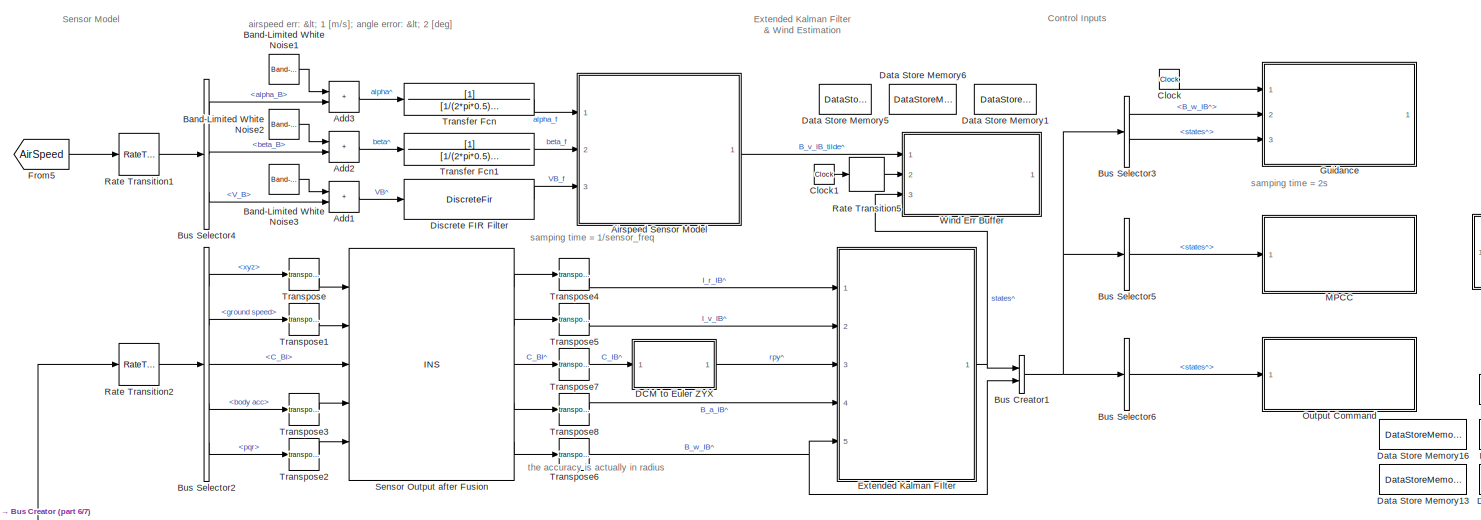
[diagram: root canvas - part 1/7, top center region]
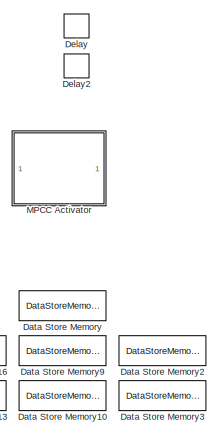
[diagram: root canvas - part 2/7, top right region]
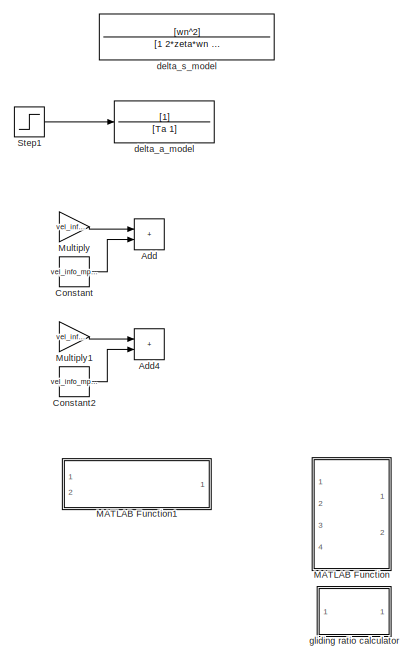
[diagram: root canvas - part 3/7, middle right region]
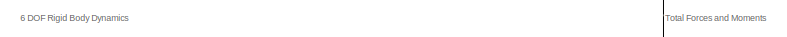
[diagram: root canvas - part 4/7, middle left region]
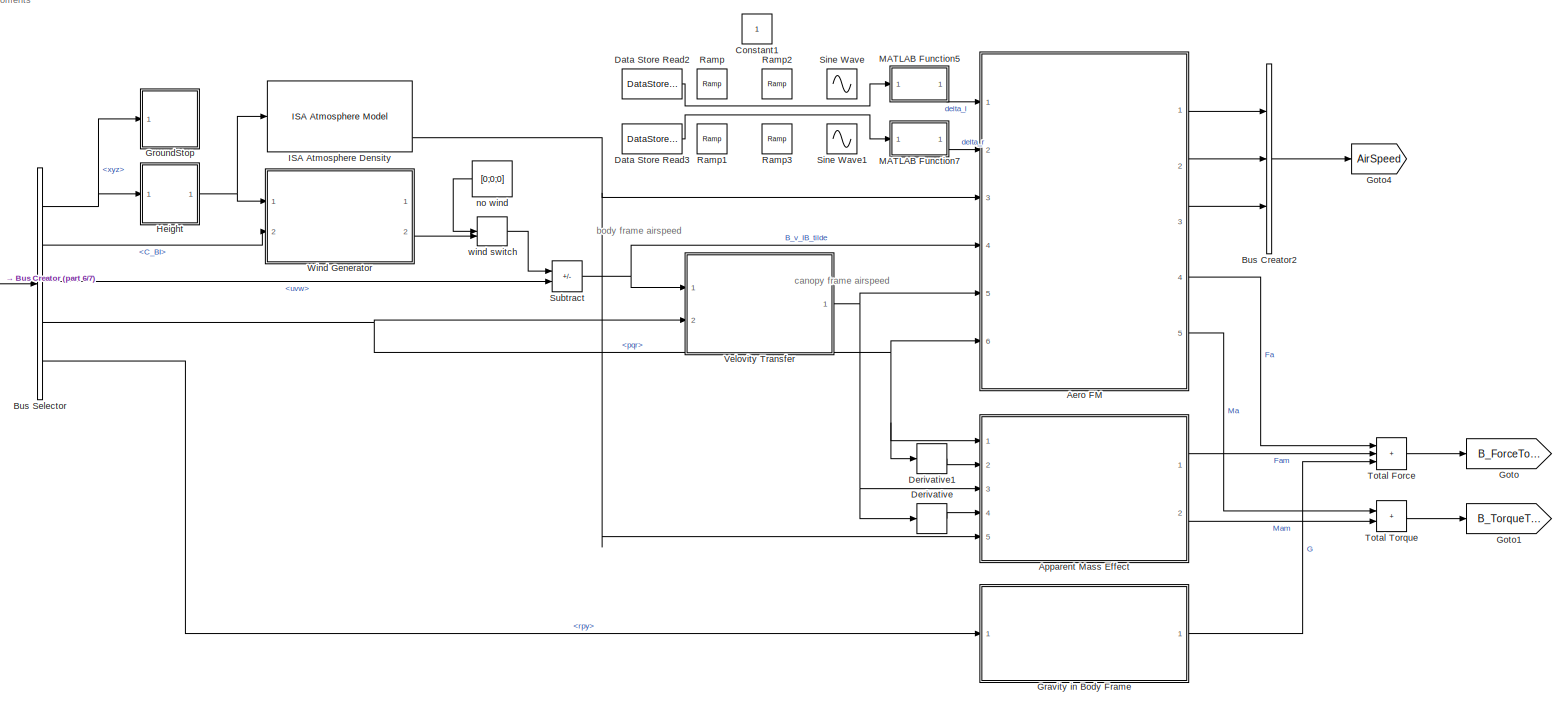
[diagram: root canvas - part 5/7, central region]
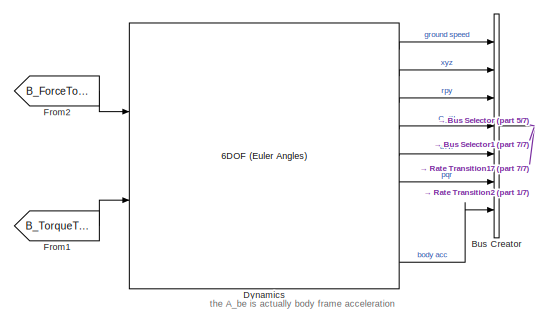
[diagram: root canvas - part 6/7, middle left region]
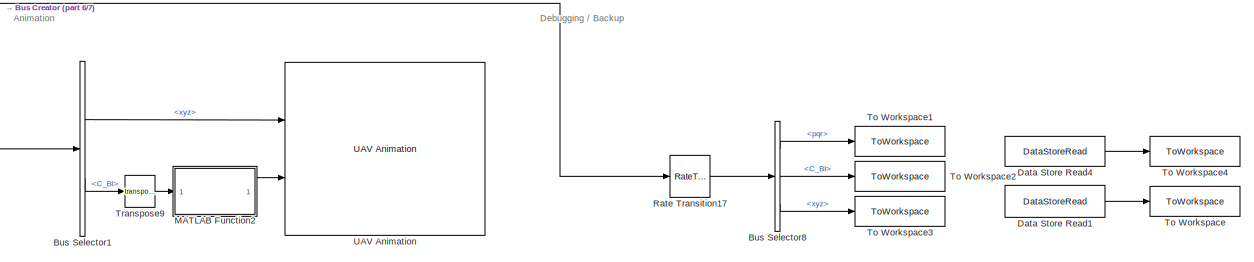
[diagram: root canvas - part 7/7, bottom center region]
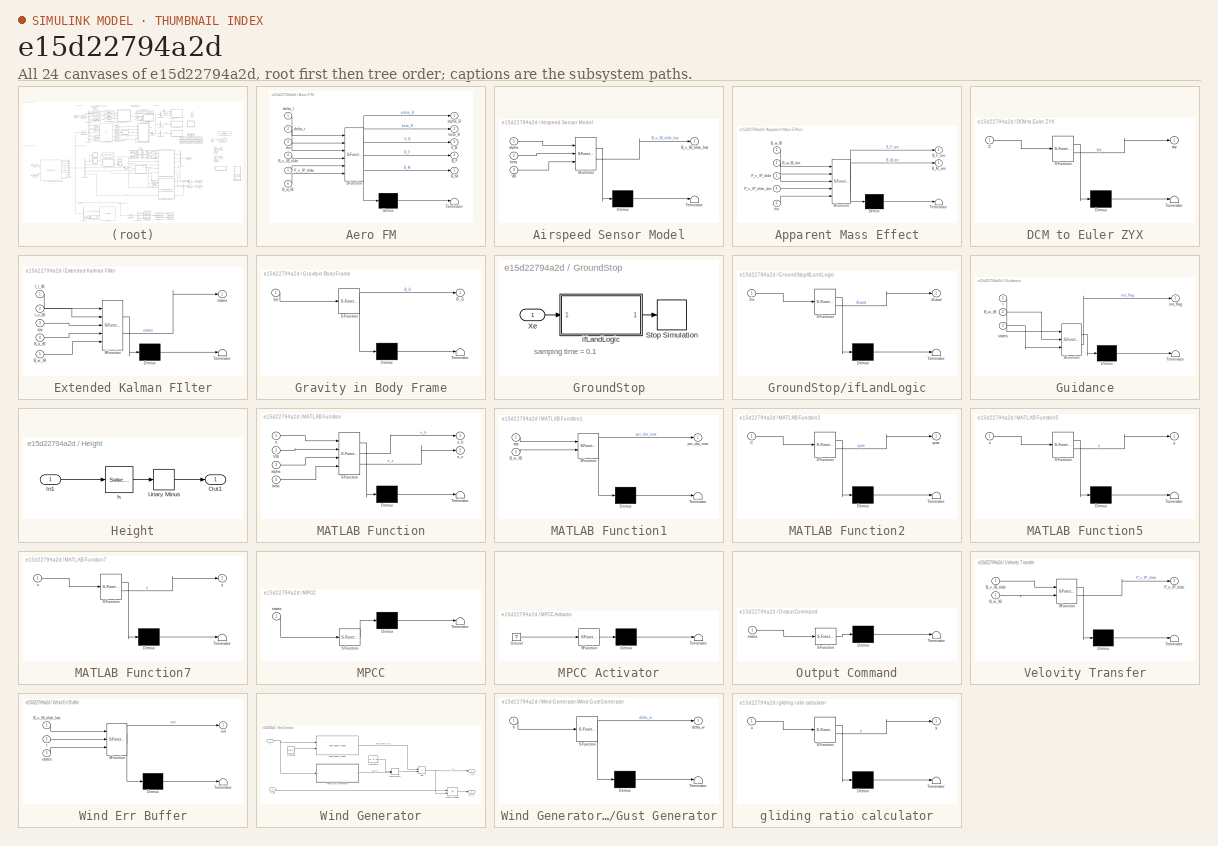
[diagram: thumbnail index - all 24 canvases of the model, root first then tree order]
MODEL slx_e15d22794a2d
KIND model
CONFIG AbsTol = auto
CONFIG EnableMultiTasking = off
CONFIG FixedStep = auto
CONFIG MaxStep = auto
CONFIG MinStep = auto
CONFIG RelTol = 1e-3
CONFIG SampleTimeConstraint = Unconstrained
CONFIG SolverName = ode45
CONFIG StartTime = 0.0
CONFIG StopTime = 150
BLOCK [Sum] Add
  Commented = on
  IconShape = rectangular
  Ports = [2, 1]
BLOCK [Sum] Add1
  IconShape = rectangular
  Ports = [2, 1]
BLOCK [Sum] Add2
  IconShape = rectangular
  Ports = [2, 1]
BLOCK [Sum] Add3
  IconShape = rectangular
  Ports = [2, 1]
BLOCK [Sum] Add4
  Commented = on
  IconShape = rectangular
  Ports = [2, 1]
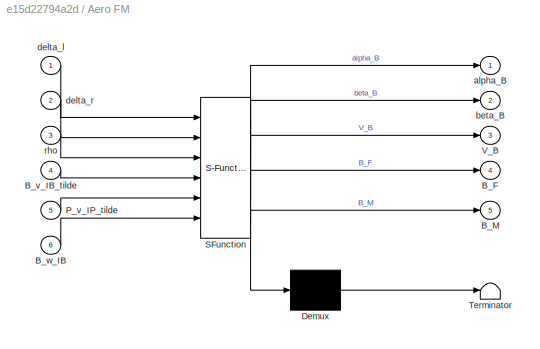
BLOCK [SubSystem] Aero FM
  ErrorFcn = Stateflow.Translate.translate
  PermitHierarchicalResolution = ExplicitOnly
  Ports = [6, 5]
  RequestExecContextInheritance = off
  SFBlockType = MATLAB Function
  TreatAsAtomicUnit = on
BLOCK [Demux] Aero FM/ Demux 
  Outputs = 1
  Ports = [1, 1]
BLOCK [S-Function] Aero FM/ SFunction 
  EnableBusSupport = on
  FunctionName = sf_sfun
  Parameters = B_r_BP,B_r_BW,C_BP,C_BW,S_pd,b,c,cD,cL,cM,cYb,c_Dpd,ref_area
  PortCounts = [6 6]
  Ports = [6, 6]
  SFcnIsStateOwnerBlock = off
  SFunctionDeploymentMode = off
  Tag = Stateflow S-Function 1
BLOCK [Terminator] Aero FM/ Terminator 
BLOCK [Outport] Aero FM/B_F
  Port = 4
BLOCK [Outport] Aero FM/B_M
  Port = 5
BLOCK [Inport] Aero FM/B_v_IB_tilde
  Port = 4
BLOCK [Inport] Aero FM/B_w_IB
  Port = 6
BLOCK [Inport] Aero FM/P_v_IP_tilde
  Port = 5
BLOCK [Outport] Aero FM/V_B
  Port = 3
BLOCK [Outport] Aero FM/alpha_B
BLOCK [Outport] Aero FM/beta_B
  Port = 2
BLOCK [Inport] Aero FM/delta_l
BLOCK [Inport] Aero FM/delta_r
  Port = 2
BLOCK [Inport] Aero FM/rho
  Port = 3
BLOCK [SubSystem] Airspeed Sensor Model
  ErrorFcn = Stateflow.Translate.translate
  PermitHierarchicalResolution = ExplicitOnly
  Ports = [3, 1]
  RequestExecContextInheritance = off
  SFBlockType = MATLAB Function
  SystemSampleTime = 1/sensor_freq
  TreatAsAtomicUnit = on
BLOCK [Demux] Airspeed Sensor Model/ Demux 
  Outputs = 1
  Ports = [1, 1]
BLOCK [S-Function] Airspeed Sensor Model/ SFunction 
  EnableBusSupport = on
  FunctionName = sf_sfun
  PortCounts = [3 2]
  Ports = [3, 2]
  SFcnIsStateOwnerBlock = off
  SFunctionDeploymentMode = off
  Tag = Stateflow S-Function 16
BLOCK [Terminator] Airspeed Sensor Model/ Terminator 
BLOCK [Outport] Airspeed Sensor Model/B_v_IB_tilde_hat
BLOCK [Inport] Airspeed Sensor Model/VB
  Port = 3
BLOCK [Inport] Airspeed Sensor Model/alpha
BLOCK [Inport] Airspeed Sensor Model/beta
  Port = 2
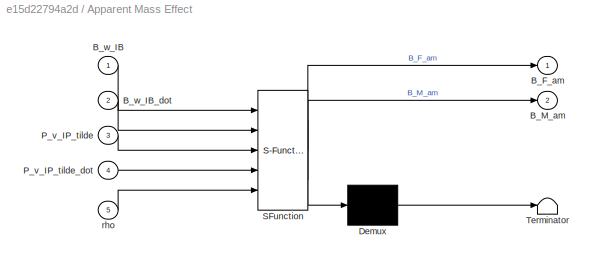
BLOCK [SubSystem] Apparent Mass Effect
  ErrorFcn = Stateflow.Translate.translate
  PermitHierarchicalResolution = ExplicitOnly
  Ports = [5, 2]
  RequestExecContextInheritance = off
  SFBlockType = MATLAB Function
  TreatAsAtomicUnit = on
BLOCK [Demux] Apparent Mass Effect/ Demux 
  Outputs = 1
  Ports = [1, 1]
BLOCK [S-Function] Apparent Mass Effect/ SFunction 
  EnableBusSupport = on
  FunctionName = sf_sfun
  Parameters = B_r_BP,C_BP,Ii,Im
  PortCounts = [5 3]
  Ports = [5, 3]
  SFcnIsStateOwnerBlock = off
  SFunctionDeploymentMode = off
  Tag = Stateflow S-Function 2
BLOCK [Terminator] Apparent Mass Effect/ Terminator 
BLOCK [Outport] Apparent Mass Effect/B_F_am
BLOCK [Outport] Apparent Mass Effect/B_M_am
  Port = 2
BLOCK [Inport] Apparent Mass Effect/B_w_IB
BLOCK [Inport] Apparent Mass Effect/B_w_IB_dot
  Port = 2
BLOCK [Inport] Apparent Mass Effect/P_v_IP_tilde
  Port = 3
BLOCK [Inport] Apparent Mass Effect/P_v_IP_tilde_dot
  Port = 4
BLOCK [Inport] Apparent Mass Effect/rho
  Port = 5
BLOCK [Reference] Band-Limited White Noise1  REF=simulink/Sources/Band-Limited
White Noise
  Ports = [0, 1]
  SourceBlock = simulink/Sources/Band-Limited\nWhite Noise
  SourceProductBaseCode = SL
  SourceType = Band-Limited White Noise.
BLOCK [Reference] Band-Limited White Noise2  REF=simulink/Sources/Band-Limited
White Noise
  Ports = [0, 1]
  SourceBlock = simulink/Sources/Band-Limited\nWhite Noise
  SourceProductBaseCode = SL
  SourceType = Band-Limited White Noise.
BLOCK [Reference] Band-Limited White Noise3  REF=simulink/Sources/Band-Limited
White Noise
  Ports = [0, 1]
  SourceBlock = simulink/Sources/Band-Limited\nWhite Noise
  SourceProductBaseCode = SL
  SourceType = Band-Limited White Noise.
BLOCK [BusCreator] Bus Creator
  DisplayOption = bar
  InheritFromInputs = on
  Inputs = 7
  Ports = [7, 1]
BLOCK [BusCreator] Bus Creator1
  DisplayOption = bar
  InheritFromInputs = on
  Inputs = 2
  Ports = [2, 1]
BLOCK [BusCreator] Bus Creator2
  DisplayOption = bar
  InheritFromInputs = on
  Inputs = 3
  Ports = [3, 1]
BLOCK [BusSelector] Bus Selector
  OutputSignals = xyz,C_BI,uvw,pqr,rpy
  Ports = [1, 5]
BLOCK [BusSelector] Bus Selector1
  OutputSignals = xyz,C_BI
  Ports = [1, 2]
BLOCK [BusSelector] Bus Selector2
  OutputSignals = xyz,ground speed,C_BI,body acc,pqr
  Ports = [1, 5]
BLOCK [BusSelector] Bus Selector3
  OutputSignals = B_w_IB^,states^
  Ports = [1, 2]
BLOCK [BusSelector] Bus Selector4
  OutputSignals = alpha_B,beta_B,V_B
  Ports = [1, 3]
BLOCK [BusSelector] Bus Selector5
  OutputSignals = states^
  Ports = [1, 1]
BLOCK [BusSelector] Bus Selector6
  OutputSignals = states^
  Ports = [1, 1]
BLOCK [BusSelector] Bus Selector8
  OutputSignals = pqr,C_BI,xyz
  Ports = [1, 3]
BLOCK [Clock] Clock
BLOCK [Clock] Clock1
BLOCK [Constant] Constant
  Commented = on
  Value = vel_info_mpcc(3)
BLOCK [Constant] Constant1
BLOCK [Constant] Constant2
  Commented = on
  Value = vel_info_mpcc(1)
BLOCK [SubSystem] DCM to Euler ZYX
  ErrorFcn = Stateflow.Translate.translate
  PermitHierarchicalResolution = ExplicitOnly
  Ports = [1, 1]
  RequestExecContextInheritance = off
  SFBlockType = MATLAB Function
  TreatAsAtomicUnit = on
BLOCK [Demux] DCM to Euler ZYX/ Demux 
  Outputs = 1
  Ports = [1, 1]
BLOCK [S-Function] DCM to Euler ZYX/ SFunction 
  EnableBusSupport = on
  FunctionName = sf_sfun
  PortCounts = [1 2]
  Ports = [1, 2]
  SFcnIsStateOwnerBlock = off
  SFunctionDeploymentMode = off
  Tag = Stateflow S-Function 20
BLOCK [Terminator] DCM to Euler ZYX/ Terminator 
BLOCK [Inport] DCM to Euler ZYX/C
BLOCK [Outport] DCM to Euler ZYX/rpy
BLOCK [DataStoreMemory] Data Store Memory
  DataStoreName = final_distance
  OutDataTypeStr = double
  ReadBeforeWriteMsg = warning
  ShowAdditionalParam = off
  SignalType = real
  WriteAfterReadMsg = warning
  WriteAfterWriteMsg = warning
BLOCK [DataStoreMemory] Data Store Memory1
  DataStoreName = wind_err
  InitialValue = wind_err0
  OutDataTypeStr = double
  ReadBeforeWriteMsg = warning
  ShowAdditionalParam = off
  SignalType = real
  VectorParams1D = off
  WriteAfterReadMsg = warning
  WriteAfterWriteMsg = warning
BLOCK [DataStoreMemory] Data Store Memory10
  DataStoreName = guidance
  InitialValue = guidance0
  OutDataTypeStr = double
  ReadBeforeWriteMsg = warning
  ShowAdditionalParam = off
  SignalType = real
  WriteAfterReadMsg = warning
  WriteAfterWriteMsg = warning
BLOCK [DataStoreMemory] Data Store Memory13
  DataStoreName = control
  InitialValue = control0
  OutDataTypeStr = double
  ReadBeforeWriteMsg = warning
  ShowAdditionalParam = off
  SignalType = real
  WriteAfterReadMsg = warning
  WriteAfterWriteMsg = warning
BLOCK [DataStoreMemory] Data Store Memory16
  DataStoreName = MpccService
  OutDataTypeStr = double
  ReadBeforeWriteMsg = warning
  ShowAdditionalParam = off
  SignalType = real
  WriteAfterReadMsg = warning
  WriteAfterWriteMsg = warning
BLOCK [DataStoreMemory] Data Store Memory2
  DataStoreName = delta_l
  InitialValue = 0.5
  OutDataTypeStr = double
  ReadBeforeWriteMsg = warning
  ShowAdditionalParam = off
  SignalType = real
  WriteAfterReadMsg = warning
  WriteAfterWriteMsg = warning
BLOCK [DataStoreMemory] Data Store Memory3
  DataStoreName = delta_r
  InitialValue = 0.5
  OutDataTypeStr = double
  ReadBeforeWriteMsg = warning
  ShowAdditionalParam = off
  SignalType = real
  WriteAfterReadMsg = warning
  WriteAfterWriteMsg = warning
BLOCK [DataStoreMemory] Data Store Memory5
  DataStoreName = state_mu
  InitialValue = state_mu0
  OutDataTypeStr = double
  ReadBeforeWriteMsg = warning
  ShowAdditionalParam = off
  SignalType = real
  VectorParams1D = off
  WriteAfterReadMsg = warning
  WriteAfterWriteMsg = warning
BLOCK [DataStoreMemory] Data Store Memory6
  DataStoreName = state_sigma
  InitialValue = state_sigma0
  OutDataTypeStr = double
  ReadBeforeWriteMsg = warning
  ShowAdditionalParam = off
  SignalType = real
  VectorParams1D = off
  WriteAfterReadMsg = warning
  WriteAfterWriteMsg = warning
BLOCK [DataStoreMemory] Data Store Memory9
  DataStoreName = GuidanceService
  InitialValue = 1
  OutDataTypeStr = double
  ReadBeforeWriteMsg = warning
  ShowAdditionalParam = off
  SignalType = real
  WriteAfterReadMsg = warning
  WriteAfterWriteMsg = warning
BLOCK [DataStoreRead] Data Store Read1
  DataStoreName = wind_err
  IndexOptions = Index vector (dialog)
  Indices = 1
  OutputSizes = 1
  Ports = [0, 1]
BLOCK [DataStoreRead] Data Store Read2
  DataStoreName = delta_l
  IndexOptions = Index vector (dialog)
  Indices = 1
  OutputSizes = 1
  Ports = [0, 1]
BLOCK [DataStoreRead] Data Store Read3
  DataStoreName = delta_r
  IndexOptions = Index vector (dialog)
  Indices = 1
  OutputSizes = 1
  Ports = [0, 1]
BLOCK [DataStoreRead] Data Store Read4
  DataStoreName = guidance
  IndexOptions = Index vector (dialog)
  Indices = 1
  OutputSizes = 1
  Ports = [0, 1]
BLOCK [Delay] Delay
  Commented = on
  InputPortMap = u0
  Ports = [1, 1]
BLOCK [Delay] Delay2
  Commented = on
  DelayLength = 1
  InputPortMap = u0
  Ports = [1, 1]
BLOCK [Derivative] Derivative
BLOCK [Derivative] Derivative1
BLOCK [DiscreteFir] Discrete FIR Filter
  Coefficients = fir1(10,0.5*2/sensor_freq,'low')
  InitialStates = norm(init_uvw)
  InputPortMap = u0
  OutputPortMap = o0
  Ports = [1, 1]
BLOCK [Reference] Dynamics  REF=shared6dof/6DOF (Euler Angles)
  Ports = [2, 9]
  SourceBlock = shared6dof/6DOF (Euler Angles)
  SourceProductBaseCode = AE,PW,DR,MT,UV,VE
  SourceType = 6DOF EoM (Body Axis)
BLOCK [SubSystem] Extended Kalman FIlter
  ErrorFcn = Stateflow.Translate.translate
  PermitHierarchicalResolution = ExplicitOnly
  Ports = [5, 1]
  RequestExecContextInheritance = off
  SFBlockType = MATLAB Function
  TreatAsAtomicUnit = on
BLOCK [Demux] Extended Kalman FIlter/ Demux 
  Outputs = 1
  Ports = [1, 1]
BLOCK [S-Function] Extended Kalman FIlter/ SFunction 
  EnableBusSupport = on
  FunctionName = sf_sfun
  Parameters = Q,R,freq
  PortCounts = [5 2]
  Ports = [5, 2]
  SFcnIsStateOwnerBlock = off
  SFunctionDeploymentMode = off
  Tag = Stateflow S-Function 17
BLOCK [Terminator] Extended Kalman FIlter/ Terminator 
BLOCK [Inport] Extended Kalman FIlter/B_a_IB
  Port = 4
BLOCK [Inport] Extended Kalman FIlter/B_w_IB
  Port = 5
BLOCK [Inport] Extended Kalman FIlter/I_r_IB
BLOCK [Inport] Extended Kalman FIlter/I_v_IB
  Port = 2
BLOCK [Inport] Extended Kalman FIlter/rpy
  Port = 3
BLOCK [Outport] Extended Kalman FIlter/states
BLOCK [From] From1
  GotoTag = B_TorqueTotal
BLOCK [From] From2
  GotoTag = B_ForceTotal
BLOCK [From] From5
  GotoTag = AirSpeed
BLOCK [Goto] Goto
  GotoTag = B_ForceTotal
BLOCK [Goto] Goto1
  GotoTag = B_TorqueTotal
BLOCK [Goto] Goto4
  GotoTag = AirSpeed
BLOCK [SubSystem] Gravity in Body Frame
  ClipboardFcn = m = load("params.mat","system_mass")
  ErrorFcn = Stateflow.Translate.translate
  PermitHierarchicalResolution = ExplicitOnly
  Ports = [1, 1]
  RequestExecContextInheritance = off
  SFBlockType = MATLAB Function
  TreatAsAtomicUnit = on
BLOCK [Demux] Gravity in Body Frame/ Demux 
  Outputs = 1
  Ports = [1, 1]
BLOCK [S-Function] Gravity in Body Frame/ SFunction 
  EnableBusSupport = on
  FunctionName = sf_sfun
  Parameters = g,m
  PortCounts = [1 2]
  Ports = [1, 2]
  SFcnIsStateOwnerBlock = off
  SFunctionDeploymentMode = off
  Tag = Stateflow S-Function 5
BLOCK [Terminator] Gravity in Body Frame/ Terminator 
BLOCK [Outport] Gravity in Body Frame/B_G
BLOCK [Inport] Gravity in Body Frame/rpy
BLOCK [SubSystem] GroundStop
  Ports = [1]
  RequestExecContextInheritance = off
BLOCK [Stop] GroundStop/Stop Simulation
BLOCK [Inport] GroundStop/Xe
BLOCK [SubSystem] GroundStop/ifLandLogic
  ErrorFcn = Stateflow.Translate.translate
  PermitHierarchicalResolution = ExplicitOnly
  Ports = [1, 1]
  RequestExecContextInheritance = off
  SFBlockType = MATLAB Function
  SystemSampleTime = 0.1
  TreatAsAtomicUnit = on
BLOCK [Demux] GroundStop/ifLandLogic/ Demux 
  Outputs = 1
  Ports = [1, 1]
BLOCK [S-Function] GroundStop/ifLandLogic/ SFunction 
  EnableBusSupport = on
  FunctionName = sf_sfun
  PortCounts = [1 2]
  Ports = [1, 2]
  SFcnIsStateOwnerBlock = off
  SFunctionDeploymentMode = off
  Tag = Stateflow S-Function 6
BLOCK [Terminator] GroundStop/ifLandLogic/ Terminator 
BLOCK [Inport] GroundStop/ifLandLogic/Xe
BLOCK [Outport] GroundStop/ifLandLogic/ifLand
BLOCK [SubSystem] Guidance
  ErrorFcn = Stateflow.Translate.translate
  PermitHierarchicalResolution = ExplicitOnly
  Ports = [3, 1]
  RequestExecContextInheritance = off
  SFBlockType = MATLAB Function
  StartFcn = SafeZoneCompute(1);
  SystemSampleTime = 2
  TreatAsAtomicUnit = on
BLOCK [Demux] Guidance/ Demux 
  Outputs = 1
  Ports = [1, 1]
BLOCK [S-Function] Guidance/ SFunction 
  EnableBusSupport = on
  FunctionName = sf_sfun
  Parameters = Axbxh,heights,psi_d,psi_ddot_m,psi_dot_m,vel_info,wind_profile_hat
  PortCounts = [3 2]
  Ports = [3, 2]
  SFcnIsStateOwnerBlock = off
  SFunctionDeploymentMode = off
  Tag = Stateflow S-Function 13
BLOCK [Terminator] Guidance/ Terminator 
BLOCK [Inport] Guidance/B_w_IB
  Port = 2
BLOCK [Outport] Guidance/not_flag
BLOCK [Inport] Guidance/states
  Port = 3
BLOCK [Inport] Guidance/t
BLOCK [SubSystem] Height
  Ports = [1, 1]
  RequestExecContextInheritance = off
BLOCK [Inport] Height/In1
BLOCK [Outport] Height/Out1
BLOCK [UnaryMinus] Height/Unary Minus
BLOCK [Selector] Height/h
  IndexOptions = Index vector (dialog)
  Indices = 3
  InputPortWidth = 3
  OutputSizes = 1
  Ports = [1, 1]
BLOCK [Reference] ISA Atmosphere Density  REF=aerolibatmos2/ISA Atmosphere Model
  Ports = [1, 4]
  SourceBlock = aerolibatmos2/ISA Atmosphere Model
  SourceProductBaseCode = AE
  SourceType = International Standard Atmosphere Model
BLOCK [SubSystem] MATLAB Function
  Commented = on
  ErrorFcn = Stateflow.Translate.translate
  PermitHierarchicalResolution = ExplicitOnly
  Ports = [4, 2]
  RequestExecContextInheritance = off
  SFBlockType = MATLAB Function
  TreatAsAtomicUnit = on
BLOCK [Demux] MATLAB Function/ Demux 
  Outputs = 1
  Ports = [1, 1]
BLOCK [S-Function] MATLAB Function/ SFunction 
  EnableBusSupport = on
  FunctionName = sf_sfun
  PortCounts = [4 3]
  Ports = [4, 3]
  SFcnIsStateOwnerBlock = off
  SFunctionDeploymentMode = off
  Tag = Stateflow S-Function 7
BLOCK [Terminator] MATLAB Function/ Terminator 
BLOCK [Inport] MATLAB Function/VB
  Port = 2
BLOCK [Inport] MATLAB Function/alpha
  Port = 3
BLOCK [Inport] MATLAB Function/beta
  Port = 4
BLOCK [Outport] MATLAB Function/e_h
BLOCK [Outport] MATLAB Function/e_z
  Port = 2
BLOCK [Inport] MATLAB Function/h
BLOCK [SubSystem] MATLAB Function1
  Commented = on
  ErrorFcn = Stateflow.Translate.translate
  PermitHierarchicalResolution = ExplicitOnly
  Ports = [2, 1]
  RequestExecContextInheritance = off
  SFBlockType = MATLAB Function
  TreatAsAtomicUnit = on
BLOCK [Demux] MATLAB Function1/ Demux 
  Outputs = 1
  Ports = [1, 1]
BLOCK [S-Function] MATLAB Function1/ SFunction 
  EnableBusSupport = on
  FunctionName = sf_sfun
  PortCounts = [2 2]
  Ports = [2, 2]
  SFcnIsStateOwnerBlock = off
  SFunctionDeploymentMode = off
  Tag = Stateflow S-Function 22
BLOCK [Terminator] MATLAB Function1/ Terminator 
BLOCK [Inport] MATLAB Function1/B_w_IB
  Port = 2
BLOCK [Outport] MATLAB Function1/psi_dot_now
BLOCK [Inport] MATLAB Function1/rpy
BLOCK [SubSystem] MATLAB Function2
  ErrorFcn = Stateflow.Translate.translate
  PermitHierarchicalResolution = ExplicitOnly
  Ports = [1, 1]
  RequestExecContextInheritance = off
  SFBlockType = MATLAB Function
  TreatAsAtomicUnit = on
BLOCK [Demux] MATLAB Function2/ Demux 
  Outputs = 1
  Ports = [1, 1]
BLOCK [S-Function] MATLAB Function2/ SFunction 
  EnableBusSupport = on
  FunctionName = sf_sfun
  PortCounts = [1 2]
  Ports = [1, 2]
  SFcnIsStateOwnerBlock = off
  SFunctionDeploymentMode = off
  Tag = Stateflow S-Function 14
BLOCK [Terminator] MATLAB Function2/ Terminator 
BLOCK [Inport] MATLAB Function2/C
BLOCK [Outport] MATLAB Function2/quat
BLOCK [SubSystem] MATLAB Function5
  ErrorFcn = Stateflow.Translate.translate
  PermitHierarchicalResolution = ExplicitOnly
  Ports = [1, 1]
  RequestExecContextInheritance = off
  SFBlockType = MATLAB Function
  TreatAsAtomicUnit = on
BLOCK [Demux] MATLAB Function5/ Demux 
  Outputs = 1
  Ports = [1, 1]
BLOCK [S-Function] MATLAB Function5/ SFunction 
  EnableBusSupport = on
  FunctionName = sf_sfun
  PortCounts = [1 2]
  Ports = [1, 2]
  SFcnIsStateOwnerBlock = off
  SFunctionDeploymentMode = off
  Tag = Stateflow S-Function 11
BLOCK [Terminator] MATLAB Function5/ Terminator 
BLOCK [Inport] MATLAB Function5/u
BLOCK [Outport] MATLAB Function5/y
BLOCK [SubSystem] MATLAB Function7
  ErrorFcn = Stateflow.Translate.translate
  PermitHierarchicalResolution = ExplicitOnly
  Ports = [1, 1]
  RequestExecContextInheritance = off
  SFBlockType = MATLAB Function
  TreatAsAtomicUnit = on
BLOCK [Demux] MATLAB Function7/ Demux 
  Outputs = 1
  Ports = [1, 1]
BLOCK [S-Function] MATLAB Function7/ SFunction 
  EnableBusSupport = on
  FunctionName = sf_sfun
  PortCounts = [1 2]
  Ports = [1, 2]
  SFcnIsStateOwnerBlock = off
  SFunctionDeploymentMode = off
  Tag = Stateflow S-Function 21
BLOCK [Terminator] MATLAB Function7/ Terminator 
BLOCK [Inport] MATLAB Function7/u
BLOCK [Outport] MATLAB Function7/y
BLOCK [SubSystem] MPCC
  ErrorFcn = Stateflow.Translate.translate
  PermitHierarchicalResolution = ExplicitOnly
  Ports = [1]
  RequestExecContextInheritance = off
  SFBlockType = MATLAB Function
  TreatAsAtomicUnit = on
BLOCK [SubSystem] MPCC Activator
  ErrorFcn = Stateflow.Translate.translate
  PermitHierarchicalResolution = ExplicitOnly
  Ports = []
  RequestExecContextInheritance = off
  SFBlockType = MATLAB Function
  SystemSampleTime = 1/mpcc_freq
  TreatAsAtomicUnit = on
BLOCK [Demux] MPCC Activator/ Demux 
  Outputs = 1
  Ports = [1, 1]
BLOCK [Ground] MPCC Activator/ Ground 
BLOCK [S-Function] MPCC Activator/ SFunction 
  EnableBusSupport = on
  FunctionName = sf_sfun
  PortCounts = [1 1]
  Ports = [1, 1]
  SFcnIsStateOwnerBlock = off
  SFunctionDeploymentMode = off
  Tag = Stateflow S-Function 10
BLOCK [Terminator] MPCC Activator/ Terminator 
BLOCK [Demux] MPCC/ Demux 
  Outputs = 1
  Ports = [1, 1]
BLOCK [S-Function] MPCC/ SFunction 
  EnableBusSupport = on
  FunctionName = sf_sfun
  Parameters = N,Ts,delta_dot_m,heights,psi_dot_m,vel_info,vel_info_mpcc,wind_profile_hat
  PortCounts = [1 1]
  Ports = [1, 1]
  SFcnIsStateOwnerBlock = off
  SFunctionDeploymentMode = off
  Tag = Stateflow S-Function 23
BLOCK [Terminator] MPCC/ Terminator 
BLOCK [Inport] MPCC/states
BLOCK [Gain] Multiply
  Commented = on
  Gain = vel_info_mpcc(4)-vel_info_mpcc(3)
BLOCK [Gain] Multiply1
  Commented = on
  Gain = vel_info_mpcc(2)-vel_info_mpcc(1)
BLOCK [SubSystem] Output Command
  ErrorFcn = Stateflow.Translate.translate
  PermitHierarchicalResolution = ExplicitOnly
  Ports = [1]
  RequestExecContextInheritance = off
  SFBlockType = MATLAB Function
  SystemSampleTime = 1/mpcc_ctrl_freq
  TreatAsAtomicUnit = on
BLOCK [Demux] Output Command/ Demux 
  Outputs = 1
  Ports = [1, 1]
BLOCK [S-Function] Output Command/ SFunction 
  EnableBusSupport = on
  FunctionName = sf_sfun
  PortCounts = [1 1]
  Ports = [1, 1]
  SFcnIsStateOwnerBlock = off
  SFunctionDeploymentMode = off
  Tag = Stateflow S-Function 15
BLOCK [Terminator] Output Command/ Terminator 
BLOCK [Inport] Output Command/states
BLOCK [Reference] Ramp  REF=simulink/Sources/Ramp
  Ports = [0, 1]
  SourceBlock = simulink/Sources/Ramp
  SourceProductBaseCode = SL
  SourceType = Ramp
BLOCK [Reference] Ramp1  REF=simulink/Sources/Ramp
  Ports = [0, 1]
  SourceBlock = simulink/Sources/Ramp
  SourceProductBaseCode = SL
  SourceType = Ramp
BLOCK [Reference] Ramp2  REF=simulink/Sources/Ramp
  Ports = [0, 1]
  SourceBlock = simulink/Sources/Ramp
  SourceProductBaseCode = SL
  SourceType = Ramp
BLOCK [Reference] Ramp3  REF=simulink/Sources/Ramp
  Ports = [0, 1]
  SourceBlock = simulink/Sources/Ramp
  SourceProductBaseCode = SL
  SourceType = Ramp
BLOCK [RateTransition] Rate Transition1
  OutPortSampleTime = 1/sensor_freq
BLOCK [RateTransition] Rate Transition17
  OutPortSampleTime = 1/sensor_freq
BLOCK [RateTransition] Rate Transition2
  OutPortSampleTime = 1/sensor_freq
BLOCK [RateTransition] Rate Transition5
  OutPortSampleTime = 1/sensor_freq
BLOCK [Reference] Sensor Output after Fusion  REF=sensorinslib/INS
  Ports = [5, 5]
  SourceBlock = sensorinslib/INS
  SourceProductBaseCode = DR,TF,NV,UV
  SourceType = fusion.internal.simulink.insSensor
BLOCK [Sin] Sine Wave
  Amplitude = 0.5
  Bias = 0.5
  Ports = [0, 1]
  SampleTime = 0
BLOCK [Sin] Sine Wave1
  Amplitude = 0.5
  Bias = 0.5
  Ports = [0, 1]
  SampleTime = 0
BLOCK [Step] Step1
  Commented = on
  SampleTime = 0
  Time = 10
BLOCK [Sum] Subtract
  IconShape = rectangular
  Inputs = -+
  Ports = [2, 1]
BLOCK [ToWorkspace] To Workspace
  FixptAsFi = on
  MaxDataPoints = inf
  Ports = [1]
  SampleTime = -1
  SaveFormat = Structure With Time
  VariableName = wind_err
BLOCK [ToWorkspace] To Workspace1
  FixptAsFi = on
  MaxDataPoints = inf
  Ports = [1]
  SampleTime = -1
  SaveFormat = Structure With Time
  VariableName = B_w_IB
BLOCK [ToWorkspace] To Workspace2
  FixptAsFi = on
  MaxDataPoints = inf
  Ports = [1]
  SampleTime = -1
  SaveFormat = Structure With Time
  VariableName = C_BI
BLOCK [ToWorkspace] To Workspace3
  FixptAsFi = on
  MaxDataPoints = inf
  Ports = [1]
  SampleTime = -1
  SaveFormat = Structure With Time
  VariableName = I_r_IB
BLOCK [ToWorkspace] To Workspace4
  FixptAsFi = on
  MaxDataPoints = inf
  Ports = [1]
  SampleTime = -1
  SaveFormat = Structure With Time
  VariableName = guidance
BLOCK [Sum] Total Force
  IconShape = rectangular
  Inputs = +++
  Ports = [3, 1]
BLOCK [Sum] Total Torque
  IconShape = rectangular
  Ports = [2, 1]
BLOCK [TransferFcn] Transfer Fcn
  Denominator = [1/(2*pi*0.5) 1]
BLOCK [TransferFcn] Transfer Fcn1
  Denominator = [1/(2*pi*0.5) 1]
BLOCK [Math] Transpose
  Operator = transpose
  Ports = [1, 1]
BLOCK [Math] Transpose1
  Operator = transpose
  Ports = [1, 1]
BLOCK [Math] Transpose2
  Operator = transpose
  Ports = [1, 1]
BLOCK [Math] Transpose3
  Operator = transpose
  Ports = [1, 1]
BLOCK [Math] Transpose4
  Operator = transpose
  Ports = [1, 1]
BLOCK [Math] Transpose5
  Operator = transpose
  Ports = [1, 1]
BLOCK [Math] Transpose6
  Operator = transpose
  Ports = [1, 1]
BLOCK [Math] Transpose7
  Operator = transpose
  Ports = [1, 1]
BLOCK [Math] Transpose8
  Operator = transpose
  Ports = [1, 1]
BLOCK [Math] Transpose9
  Operator = transpose
  Ports = [1, 1]
BLOCK [Reference] UAV Animation  REF=uavutilslib/UAV Animation
  Ports = [2]
  SourceBlock = uavutilslib/UAV Animation
  SourceProductBaseCode = UV
  SourceType = uav.sluav.internal.system.UAVAnimation
BLOCK [SubSystem] Velovity Transfer
  ErrorFcn = Stateflow.Translate.translate
  PermitHierarchicalResolution = ExplicitOnly
  Ports = [2, 1]
  RequestExecContextInheritance = off
  SFBlockType = MATLAB Function
  TreatAsAtomicUnit = on
BLOCK [Demux] Velovity Transfer/ Demux 
  Outputs = 1
  Ports = [1, 1]
BLOCK [S-Function] Velovity Transfer/ SFunction 
  EnableBusSupport = on
  FunctionName = sf_sfun
  Parameters = B_r_BP,C_BP
  PortCounts = [2 2]
  Ports = [2, 2]
  SFcnIsStateOwnerBlock = off
  SFunctionDeploymentMode = off
  Tag = Stateflow S-Function 4
BLOCK [Terminator] Velovity Transfer/ Terminator 
BLOCK [Inport] Velovity Transfer/B_v_IB_tilde
BLOCK [Inport] Velovity Transfer/B_w_IB
  Port = 2
BLOCK [Outport] Velovity Transfer/P_v_IP_tilde
BLOCK [SubSystem] Wind Err Buffer
  ErrorFcn = Stateflow.Translate.translate
  PermitHierarchicalResolution = ExplicitOnly
  Ports = [3, 1]
  RequestExecContextInheritance = off
  SFBlockType = MATLAB Function
  TreatAsAtomicUnit = on
BLOCK [Demux] Wind Err Buffer/ Demux 
  Outputs = 1
  Ports = [1, 1]
BLOCK [S-Function] Wind Err Buffer/ SFunction 
  EnableBusSupport = on
  FunctionName = sf_sfun
  Parameters = heights,wind_profile_hat
  PortCounts = [3 2]
  Ports = [3, 2]
  SFcnIsStateOwnerBlock = off
  SFunctionDeploymentMode = off
  Tag = Stateflow S-Function 25
BLOCK [Terminator] Wind Err Buffer/ Terminator 
BLOCK [Inport] Wind Err Buffer/B_v_IB_tilde_hat
BLOCK [Outport] Wind Err Buffer/out
BLOCK [Inport] Wind Err Buffer/states
  Port = 3
BLOCK [Inport] Wind Err Buffer/t
  Port = 2
BLOCK [SubSystem] Wind Generator
  Ports = [2, 2]
  RequestExecContextInheritance = off
BLOCK [Sum] Wind Generator/Add
  IconShape = rectangular
  Ports = [2, 1]
BLOCK [Outport] Wind Generator/B_V_w
  Port = 2
BLOCK [Inport] Wind Generator/C_BI
  Port = 2
BLOCK [Constant] Wind Generator/Constant
  Value = eye(3)
BLOCK [Constant] Wind Generator/Constant2
  Value = [0; 0; 0]
BLOCK [Outport] Wind Generator/I_V_w
BLOCK [Product] Wind Generator/Matrix Multiply
  Multiplication = Matrix(*)
  Ports = [2, 1]
BLOCK [SubSystem] Wind Generator/Wind Gust Generator
  ErrorFcn = Stateflow.Translate.translate
  PermitHierarchicalResolution = ExplicitOnly
  Ports = [1, 1]
  RequestExecContextInheritance = off
  SFBlockType = MATLAB Function
  TreatAsAtomicUnit = on
BLOCK [Demux] Wind Generator/Wind Gust Generator/ Demux 
  Outputs = 1
  Ports = [1, 1]
BLOCK [S-Function] Wind Generator/Wind Gust Generator/ SFunction 
  EnableBusSupport = on
  FunctionName = sf_sfun
  Parameters = delta_ws,heights
  PortCounts = [1 2]
  Ports = [1, 2]
  SFcnIsStateOwnerBlock = off
  SFunctionDeploymentMode = off
  Tag = Stateflow S-Function 24
BLOCK [Terminator] Wind Generator/Wind Gust Generator/ Terminator 
BLOCK [Outport] Wind Generator/Wind Gust Generator/delta_w
BLOCK [Inport] Wind Generator/Wind Gust Generator/h
BLOCK [Reference] Wind Generator/Wind Shear Model  REF=aerolibwind2/Wind Shear Model
  Ports = [2, 1]
  SourceBlock = aerolibwind2/Wind Shear Model
  SourceProductBaseCode = AE
  SourceType = Wind Shear Model
BLOCK [Inport] Wind Generator/h
BLOCK [ManualSwitch] Wind Generator/wind switch
  CurrentSetting = 0
BLOCK [TransferFcn] delta_a_model
  Commented = on
  Denominator = [Ta 1]
BLOCK [TransferFcn] delta_s_model
  Commented = on
  Denominator = [1 2*zeta*wn wn^2]
  Numerator = [wn^2]
BLOCK [SubSystem] gliding ratio calculator
  Commented = on
  ErrorFcn = Stateflow.Translate.translate
  PermitHierarchicalResolution = ExplicitOnly
  Ports = [1, 1]
  RequestExecContextInheritance = off
  SFBlockType = MATLAB Function
  TreatAsAtomicUnit = on
BLOCK [Demux] gliding ratio calculator/ Demux 
  Outputs = 1
  Ports = [1, 1]
BLOCK [S-Function] gliding ratio calculator/ SFunction 
  EnableBusSupport = on
  FunctionName = sf_sfun
  PortCounts = [1 2]
  Ports = [1, 2]
  SFcnIsStateOwnerBlock = off
  SFunctionDeploymentMode = off
  Tag = Stateflow S-Function 9
BLOCK [Terminator] gliding ratio calculator/ Terminator 
BLOCK [Inport] gliding ratio calculator/u
BLOCK [Outport] gliding ratio calculator/y
BLOCK [Constant] no wind
  Value = [0;0;0]
BLOCK [ManualSwitch] wind switch
  CurrentSetting = 0
ANNOTATION (root): 6 DOF Rigid Body Dynamics
ANNOTATION (root): samping time = 2s
ANNOTATION (root): airspeed err: < 1 [m/s]; angle error: < 2 [deg]
ANNOTATION (root): Animation
ANNOTATION (root): Control Inputs
ANNOTATION (root): Debugging / Backup
ANNOTATION (root): Extended Kalman Filter & Wind Estimation
ANNOTATION (root): Sensor Model
ANNOTATION (root): Total Forces and Moments
ANNOTATION (root): body frame airspeed
ANNOTATION (root): canopy frame airspeed
ANNOTATION (root): samping time = 1/sensor_freq
ANNOTATION (root): the A_be is actually body frame acceleration
ANNOTATION (root): the accuracy is actually in radius
ANNOTATION GroundStop: samping time = 0.1
LINE Add1:1 -> Discrete FIR Filter:1
LINE Add2:1 -> Transfer Fcn1:1
LINE Add3:1 -> Transfer Fcn:1
LINE Aero FM:1 -> Bus Creator2:1
LINE Aero FM:2 -> Bus Creator2:2
LINE Aero FM:3 -> Bus Creator2:3
LINE Aero FM:4 -> Total Force:1
LINE Aero FM:5 -> Total Torque:1
LINE Airspeed Sensor Model:1 -> Wind Err Buffer:1
LINE Apparent Mass Effect:1 -> Total Force:2
LINE Apparent Mass Effect:2 -> Total Torque:2
LINE Band-Limited White Noise1:1 -> Add3:1
LINE Band-Limited White Noise2:1 -> Add2:1
LINE Band-Limited White Noise3:1 -> Add1:1
NET Bus Creator1:1 -> Bus Selector3:1, Bus Selector5:1, Bus Selector6:1
LINE Bus Creator2:1 -> Goto4:1
NET Bus Creator:1 -> Bus Selector1:1, Bus Selector:1, Rate Transition17:1, Rate Transition2:1
LINE Bus Selector1:1 -> UAV Animation:1
LINE Bus Selector1:2 -> Transpose9:1
LINE Bus Selector2:1 -> Transpose:1
LINE Bus Selector2:2 -> Transpose1:1
LINE Bus Selector2:3 -> Sensor Output after Fusion:3
LINE Bus Selector2:4 -> Transpose3:1
LINE Bus Selector2:5 -> Transpose2:1
LINE Bus Selector3:1 -> Guidance:2
LINE Bus Selector3:2 -> Guidance:3
LINE Bus Selector4:1 -> Add3:2
LINE Bus Selector4:2 -> Add2:2
LINE Bus Selector4:3 -> Add1:2
LINE Bus Selector5:1 -> MPCC:1
LINE Bus Selector6:1 -> Output Command:1
LINE Bus Selector8:1 -> To Workspace1:1
LINE Bus Selector8:2 -> To Workspace2:1
LINE Bus Selector8:3 -> To Workspace3:1
NET Bus Selector:1 -> GroundStop:1, Height:1
LINE Bus Selector:2 -> Wind Generator:2
LINE Bus Selector:3 -> Subtract:2
NET Bus Selector:4 -> Aero FM:6, Apparent Mass Effect:1, Derivative1:1, Velovity Transfer:2
LINE Bus Selector:5 -> Gravity in Body Frame:1
LINE Clock1:1 -> Rate Transition5:1
LINE Clock:1 -> Guidance:1
LINE Constant2:1 -> Add4:2
LINE Constant:1 -> Add:2
LINE DCM to Euler ZYX:1 -> Extended Kalman FIlter:3
LINE Data Store Read1:1 -> To Workspace:1
LINE Data Store Read2:1 -> MATLAB Function5:1
LINE Data Store Read3:1 -> MATLAB Function7:1
LINE Data Store Read4:1 -> To Workspace4:1
LINE Derivative1:1 -> Apparent Mass Effect:2
LINE Derivative:1 -> Apparent Mass Effect:4
LINE Discrete FIR Filter:1 -> Airspeed Sensor Model:3
LINE Dynamics:1 -> Bus Creator:1
LINE Dynamics:2 -> Bus Creator:2
LINE Dynamics:3 -> Bus Creator:3
LINE Dynamics:4 -> Bus Creator:4
LINE Dynamics:5 -> Bus Creator:5
LINE Dynamics:6 -> Bus Creator:6
LINE Dynamics:9 -> Bus Creator:7
NET Extended Kalman FIlter:1 -> Bus Creator1:1, Wind Err Buffer:3
LINE From1:1 -> Dynamics:2
LINE From2:1 -> Dynamics:1
LINE From5:1 -> Rate Transition1:1
LINE Gravity in Body Frame:1 -> Total Force:3
LINE GroundStop/Xe:1 -> GroundStop/ifLandLogic:1
LINE GroundStop/ifLandLogic:1 -> GroundStop/Stop Simulation:1
LINE Height/In1:1 -> Height/h:1
LINE Height/Unary Minus:1 -> Height/Out1:1
LINE Height/h:1 -> Height/Unary Minus:1
NET Height:1 -> ISA Atmosphere Density:1, Wind Generator:1
NET ISA Atmosphere Density:4 -> Aero FM:3, Apparent Mass Effect:5
LINE MATLAB Function2:1 -> UAV Animation:2
LINE MATLAB Function5:1 -> Aero FM:1
LINE MATLAB Function7:1 -> Aero FM:2
LINE Multiply1:1 -> Add4:1
LINE Multiply:1 -> Add:1
LINE Rate Transition17:1 -> Bus Selector8:1
LINE Rate Transition1:1 -> Bus Selector4:1
LINE Rate Transition2:1 -> Bus Selector2:1
LINE Rate Transition5:1 -> Wind Err Buffer:2
LINE Sensor Output after Fusion:1 -> Transpose4:1
LINE Sensor Output after Fusion:2 -> Transpose5:1
LINE Sensor Output after Fusion:3 -> Transpose7:1
LINE Sensor Output after Fusion:4 -> Transpose8:1
LINE Sensor Output after Fusion:5 -> Transpose6:1
LINE Step1:1 -> delta_a_model:1
NET Subtract:1 -> Aero FM:4, Velovity Transfer:1
LINE Total Force:1 -> Goto:1
LINE Total Torque:1 -> Goto1:1
LINE Transfer Fcn1:1 -> Airspeed Sensor Model:2
LINE Transfer Fcn:1 -> Airspeed Sensor Model:1
LINE Transpose1:1 -> Sensor Output after Fusion:2
LINE Transpose2:1 -> Sensor Output after Fusion:5
LINE Transpose3:1 -> Sensor Output after Fusion:4
LINE Transpose4:1 -> Extended Kalman FIlter:1
LINE Transpose5:1 -> Extended Kalman FIlter:2
NET Transpose6:1 -> Bus Creator1:2, Extended Kalman FIlter:5
LINE Transpose7:1 -> DCM to Euler ZYX:1
LINE Transpose8:1 -> Extended Kalman FIlter:4
LINE Transpose9:1 -> MATLAB Function2:1
LINE Transpose:1 -> Sensor Output after Fusion:1
NET Velovity Transfer:1 -> Aero FM:5, Apparent Mass Effect:3, Derivative:1
NET Wind Generator/Add:1 -> Wind Generator/I_V_w:1, Wind Generator/Matrix Multiply:2
LINE Wind Generator/C_BI:1 -> Wind Generator/Matrix Multiply:1
LINE Wind Generator/Constant2:1 -> Wind Generator/wind switch:1
LINE Wind Generator/Constant:1 -> Wind Generator/Wind Shear Model:2
LINE Wind Generator/Matrix Multiply:1 -> Wind Generator/B_V_w:1
LINE Wind Generator/Wind Gust Generator:1 -> Wind Generator/wind switch:2
LINE Wind Generator/Wind Shear Model:1 -> Wind Generator/Add:1
NET Wind Generator/h:1 -> Wind Generator/Wind Gust Generator:1, Wind Generator/Wind Shear Model:1
LINE Wind Generator/wind switch:1 -> Wind Generator/Add:2
LINE Wind Generator:2 -> wind switch:2
LINE no wind:1 -> wind switch:1
LINE wind switch:1 -> Subtract:1
note: NET lines group one-source signal fan-out (src -> all destinations, sorted); 1:1 wires keep LINE
CHART Gravity in Body Frame states=1 transitions=1
  STATE_LABEL 'eML_blk_kernel()'
  STATE_LABEL 'SCRIPT:\nfunction B_G = GravityInBodyFrame(rpy, m, g)\n    B_G = m*g*[-sin(rpy(2));\n               sin(rpy(1))*cos(rpy(2));\n               cos(rpy(1))*cos(rpy(2))];\nend'
CHART GroundStop/ifLandLogic states=1 transitions=1
  STATE_LABEL 'eML_blk_kernel()'
  STATE_LABEL "SCRIPT:\nfunction ifLand = logic(Xe)\n\n    if Xe(3) < -0.000001\n        ifLand = 0;\n    else\n        str = sprintf('Parafoil landed at: (%0.5f[m], %0.5f[m])\\n',Xe(1),Xe(2));\n        disp(str)\n        ifLand = 1;\n    end\n\nend\n"
CHART MATLAB Function states=1 transitions=1
  STATE_LABEL 'eML_blk_kernel()'
  STATE_LABEL 'SCRIPT:\nfunction [e_h, e_z] = Hexam(h, VB, alpha, beta)\nvel = VB*[cot(alpha)*abs(sin(alpha)*cos(beta));\n                           sin(beta);\n                           abs(sin(alpha)*cos(beta)) ];\nVh = norm(vel(1:2));\nVz = vel(3);\n\nch = 1.225;\ncz = 2.256e-5;\nce = 4.2559;\ncf = ce/2+1;\n\nvel_info = [95.551, 3.87807, 1.61823]; % corresponding height\n\n\n% functions\nrho = ch*(1-h*cz)^ce;\nrho0 = ch*(1-ve...<+123ch>'
CHART gliding ratio calculator states=1 transitions=1
  STATE_LABEL 'eML_blk_kernel()'
  STATE_LABEL 'SCRIPT:\nfunction y = fcn(u)\n\nVh = norm([u(1), u(2)]);\nVz = u(3);\ny = atan(Vz/Vh)/pi*180;\n'
CHART MPCC Activator states=1 transitions=1
  STATE_LABEL 'eML_blk_kernel()'
  STATE_LABEL 'SCRIPT:\nfunction MpccActivator\n    global MpccService\n    MpccService = 1;\nend'
CHART MATLAB Function5 states=1 transitions=1
  STATE_LABEL 'eML_blk_kernel()'
  STATE_LABEL 'SCRIPT:\nfunction y = motor(u)\n    if u>1\n        y = 1;\n    elseif u<0\n        y = 0;\n    else\n        y = u;\n    end\nend'
CHART Guidance states=1 transitions=1
  STATE_LABEL 'eML_blk_kernel()'
  STATE_LABEL 'SCRIPT:\nfunction not_flag = Guidance(t, B_w_IB, states, psi_dot_m, psi_d, heights, wind_profile_hat, vel_info, Axbxh, psi_ddot_m)\n    \n    coder.extrinsic("GuidanceSolve")\n\n    global GuidanceService\n    global MpccService\n    global guidance\n    global wind_err\n    global final_distance\n\n    h = -states(3);\n    xt = states(1);\n    yt = states(2);\n    not_flag = false;\n    \n    % 5s warm up\n    gu...<+1678ch>'
CHART MATLAB Function2 states=1 transitions=1
  STATE_LABEL 'eML_blk_kernel()'
  STATE_LABEL 'SCRIPT:\nfunction quat = DCM2Quat(C)\n    % transform C_IB --> unit quaternion\n%     quat = zeros(4,1);\n    quat = 0.5*[sqrt(C(1,1) + C(2,2) + C(3,3) + 1);\n                Sign(C(3,2)-C(2,3))*sqrt(C(1,1) - C(2,2) - C(3,3) +1);\n                Sign(C(1,3)-C(3,1))*sqrt(C(2,2) - C(3,3) - C(1,1) +1);\n                Sign(C(2,1)-C(1,2))*sqrt(C(3,3) - C(1,1) - C(2,2) +1)];\nend\n\nfunction sgn = Sign(x)\n    ...<+64ch>'
CHART Output Command states=1 transitions=1
  STATE_LABEL 'eML_blk_kernel()'
  STATE_LABEL 'SCRIPT:\nfunction OutputCmd(states)\n    coder.extrinsic("scatter3")\n    global control\n    global delta_l\n    global delta_r\n    \n    h = -states(3);\n    hold on\n    scatter3(states(2), states(1), h, 5, \'m\');\n    control_zero_cnt = sum(control==0, \'all\'); % if control initialized\n    if control_zero_cnt<3\n        delta_l = interp1(control(1,:), control(2,:), h, \'linear\', \'extrap\');\n        delta_r ...<+73ch>'
CHART Airspeed Sensor Model states=1 transitions=1
  STATE_LABEL 'eML_blk_kernel()'
  STATE_LABEL "SCRIPT:\nfunction B_v_IB_tilde_hat = AirspeedSensorModel(alpha, beta, VB)\n    B_v_IB_tilde_hat = VB*[cot(alpha)*abs(sin(alpha)*cos(beta));\n                           sin(beta);\n                           abs(sin(alpha)*cos(beta))];\n    \n    % data output NaN check\n    if sum(isnan(B_v_IB_tilde_hat),'all')>0\n        B_v_IB_tilde_hat = zeros(3,1);\n    end\nend\n"
CHART Extended Kalman FIlter states=1 transitions=1
  STATE_LABEL 'eML_blk_kernel()'
  STATE_LABEL 'SCRIPT:\nfunction states = ExtendedKalmanFilter(freq, Q, R, I_r_IB, I_v_IB, rpy, B_a_IB, B_w_IB)\n    global state_mu % x_m_k-1\n    global state_sigma % P_m_k-1\n\n    % state X = [x, y, z, x_dot, y_dot, z_dot, row, pitch, yaw]^T 9*1\n    % control input U = [B_a_IB; B_w_IB] 6*1\n    % dynamics disturbance D = [d_a; d_w] 6*1\n    % sensor observation Z = [I_r_IB; I_v_IB; row; pitch; yaw] 9*1\n    % sensor...<+3608ch>'
CHART DCM to Euler ZYX states=1 transitions=1
  STATE_LABEL 'eML_blk_kernel()'
  STATE_LABEL 'SCRIPT:\nfunction rpy = DCM2EulerZYX(C)\n    % transform C_IB --> Euler angle ZYX\n    rpy = [atan2(C(3,2),C(3,3));\n           atan2(-C(3,1), norm([C(3,2), C(3,3)]));\n           atan2(C(2,1), C(1,1))];\nend\n'
CHART MATLAB Function7 states=1 transitions=1
  STATE_LABEL 'eML_blk_kernel()'
  STATE_LABEL 'SCRIPT:\nfunction y = motor(u)\n    if u>1\n        y = 1;\n    elseif u<0\n        y = 0;\n    else\n        y = u;\n    end\nend'
CHART MATLAB Function1 states=1 transitions=1
  STATE_LABEL 'eML_blk_kernel()'
  STATE_LABEL 'SCRIPT:\nfunction psi_dot_now = fcn(rpy, B_w_IB)\n\nphi_t = rpy(1);\ntheta_t = rpy(2);\npsi_dot_now = B_w_IB(2)*sin(phi_t)/cos(theta_t) + B_w_IB(3)*cos(phi_t)/cos(theta_t);'
CHART MPCC states=1 transitions=1
  STATE_LABEL 'eML_blk_kernel()'
  STATE_LABEL 'SCRIPT:\nfunction MPCC(states, psi_dot_m, N, heights, wind_profile_hat, Ts, vel_info, vel_info_mpcc, delta_dot_m)\n    coder.extrinsic("MPCC3d")\n\n    global GuidanceService\n    global MpccService\n    global guidance\n    global control\n    global wind_err\n    global delta_l\n    global delta_r\n    global final_distance\n    \n    % get current state\n    h = -states(3);\n    xt = states(1);\n    yt = state...<+917ch>'
CHART Wind Generator/Wind Gust Generator states=1 transitions=1
  STATE_LABEL 'eML_blk_kernel()'
  STATE_LABEL "SCRIPT:\nfunction delta_w = WindGustGenerator(h, heights, delta_ws)\n\ndelta_w = [interp1(heights, delta_ws(1,:), h, 'spline', 'extrap');\n           interp1(heights, delta_ws(2,:), h, 'spline', 'extrap');\n           interp1(heights, delta_ws(3,:), h, 'spline', 'extrap')];\nend\n"
CHART Wind Err Buffer states=1 transitions=1
  STATE_LABEL 'eML_blk_kernel()'
  STATE_LABEL "SCRIPT:\nfunction out = WindErrBuffer(B_v_IB_tilde_hat, t, states, heights, wind_profile_hat)\n\n    global wind_err\n    h = -states(3);\n    wind_pf_k = [interp1(heights, wind_profile_hat(1,:), h, 'linear', 'extrap');\n                 interp1(heights, wind_profile_hat(2,:), h, 'linear', 'extrap');\n                 0];\n    \n    phi = states(7); % row\n    theta = states(8); % pitch\n    psi = states(9);...<+725ch>"
CHART Aero FM states=1 transitions=1
  STATE_LABEL 'eML_blk_kernel()'
  STATE_LABEL 'SCRIPT:\nfunction [alpha_B, beta_B, V_B, B_F, B_M] = AeroFM(delta_l, delta_r, rho, B_v_IB_tilde, P_v_IP_tilde, B_w_IB, cL, cD, b, c, C_BP, ref_area, cM, B_r_BP, c_Dpd, S_pd, B_r_BW, C_BW, cYb)\n    % control inputs transfer\n    delta_s = (delta_l + delta_r) / 2;\n    delta_a = delta_r - delta_l;\n    \n    % B_v_IB_tilde: body frame air speed\n    u_B = B_v_IB_tilde(1);\n    v_B = B_v_IB_tilde(2);\n    w_...<+1694ch>'
CHART Apparent Mass Effect states=1 transitions=1
  STATE_LABEL 'eML_blk_kernel()'
  STATE_LABEL 'SCRIPT:\nfunction [B_F_am, B_M_am] = ApparentMassEffect(B_w_IB, B_w_IB_dot, P_v_IP_tilde, P_v_IP_tilde_dot, rho, Im, Ii, B_r_BP, C_BP)\n    \n    % apparent mass and apparent inertia\n    Iam = rho * Im;\n    Iai = rho * Ii;\n\n    % P_w_IP\n    P_w_IP_skew = C_BP\\skew(B_w_IB)*C_BP;\n    P_w_IP = [P_w_IP_skew(3,2);\n              P_w_IP_skew(1,3);\n              P_w_IP_skew(2,1)];\n    \n    % P_w_IP_dot\n    P...<+681ch>'
CHART Velovity Transfer states=1 transitions=1
  STATE_LABEL 'eML_blk_kernel()'
  STATE_LABEL 'SCRIPT:\nfunction P_v_IP_tilde = VelTrans(B_v_IB_tilde, B_w_IB, B_r_BP, C_BP)\n    P_v_IP_tilde = C_BP\\(B_v_IB_tilde + cross(B_w_IB, B_r_BP));\nend'
CHART  states=0 transitions=0
CHART  states=0 transitions=0
CHART  states=0 transitions=0
CHART  states=0 transitions=0
CHART  states=0 transitions=0
CHART  states=0 transitions=0
CHART  states=0 transitions=0
CHART  states=0 transitions=0
CHART  states=0 transitions=0
CHART  states=0 transitions=0
CHART  states=0 transitions=0
CHART  states=0 transitions=0
CHART  states=0 transitions=0
CHART  states=0 transitions=0
CHART  states=0 transitions=0
CHART  states=0 transitions=0
CHART  states=0 transitions=0
CHART  states=0 transitions=0
CHART  states=0 transitions=0
CHART  states=0 transitions=0
